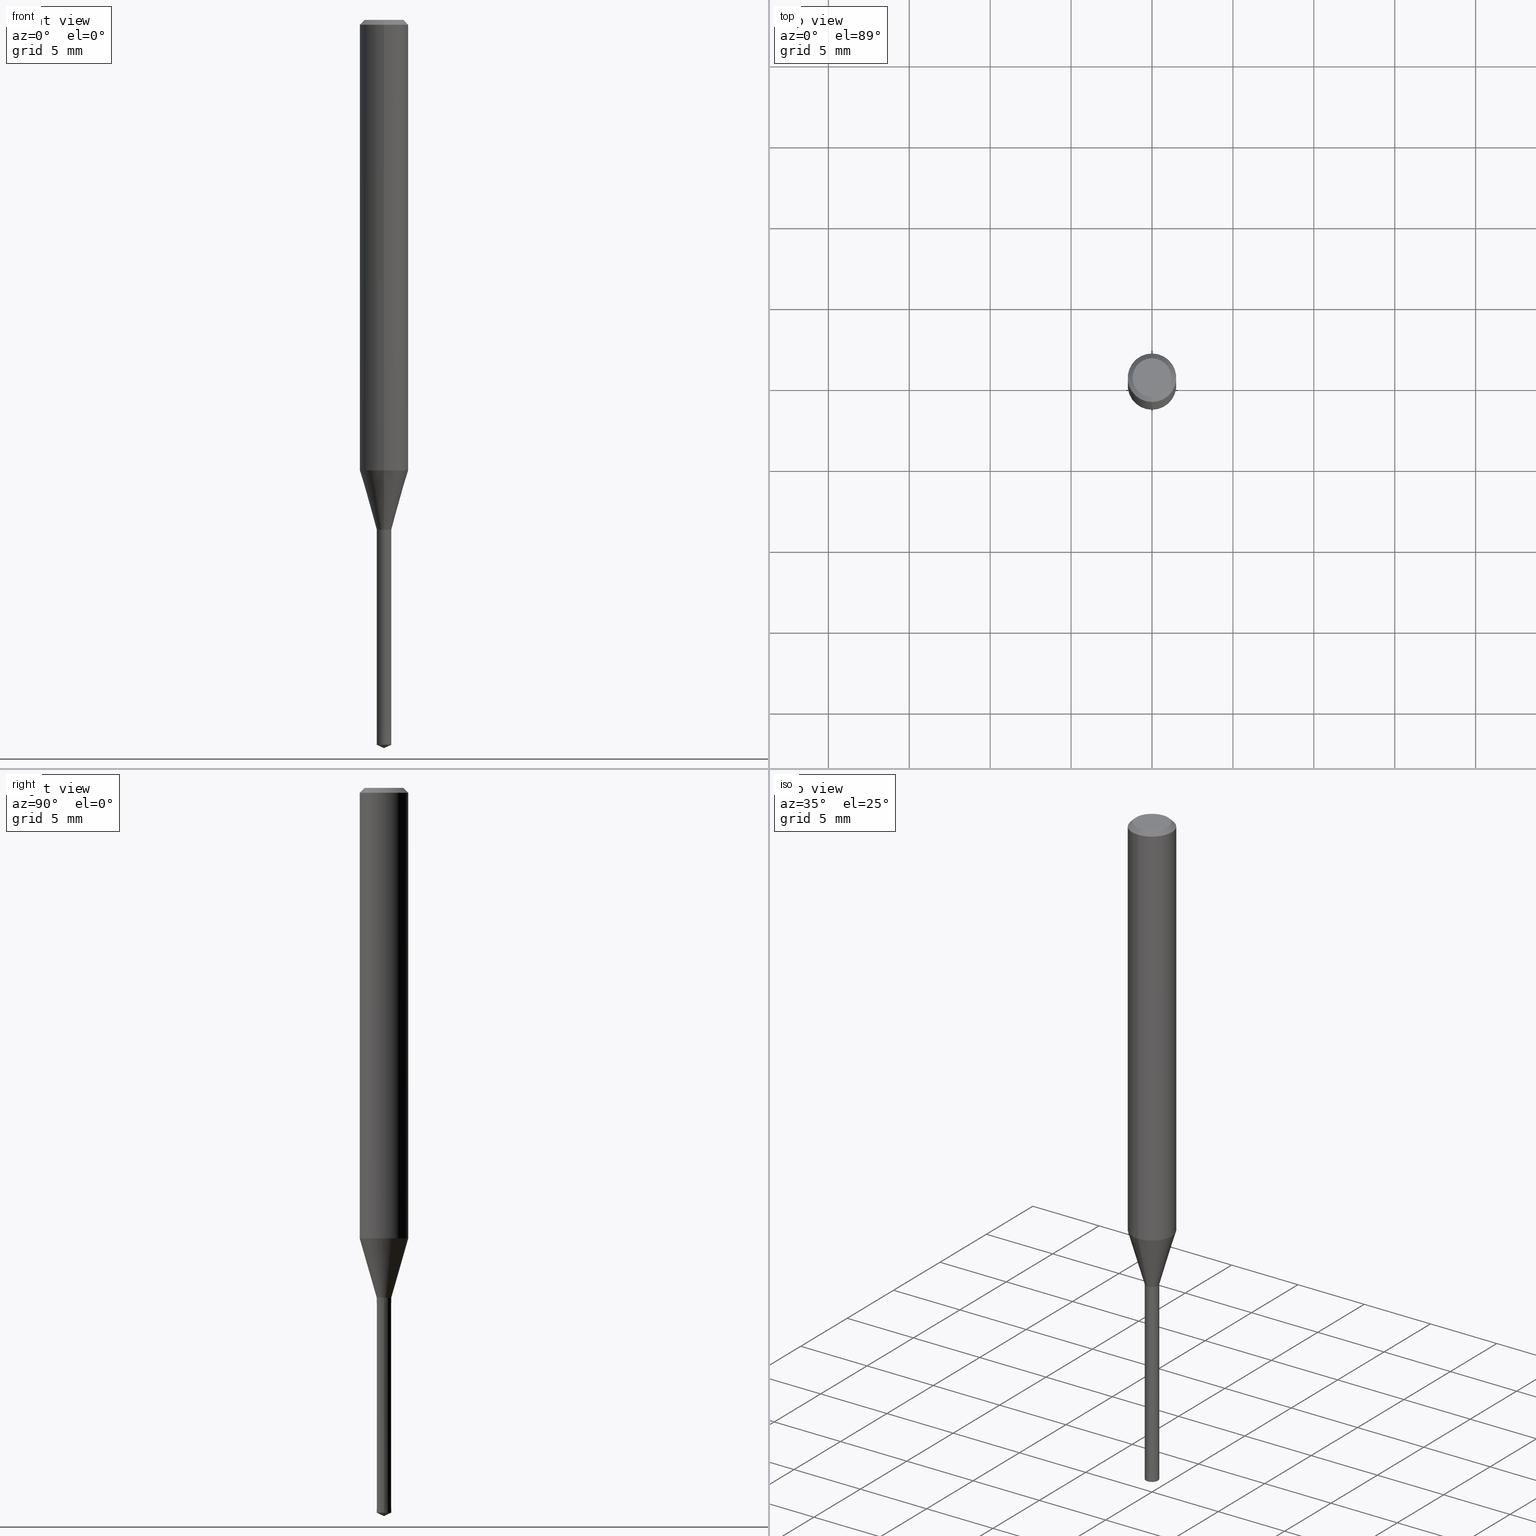
[diagram: canonical four-view strip — front | top / right | iso, engineering-drawing reading convention]
A machine part, canonical four-view strip (front | top / right | iso — engineering-drawing reading convention). The complete STEP part file that produces these views, byte-faithful:
ISO-10303-21;
HEADER;
FILE_DESCRIPTION(('no description'),'unknown implementation level');
FILE_NAME('UTDLX2090-135-Huellk.stp','  ',('CIMSOURCE GmbH'),('CADClick - KiM GmbH - www.kimweb.de'),'unknown preprocess','ACIS','unknown authorization');
FILE_SCHEMA(('automotive_design'));
ENDSEC;
DATA;
#1=MECHANICAL_DESIGN_GEOMETRIC_PRESENTATION_REPRESENTATION(' ',(#14,#15,#16,#17,#18,#19,#20,#21,#22,#23,#24,#25,#26,#27,#28,#29,#30,#31,#32,#33,#34,#35,#36,#37,#38,#39,#40,#41,#42,#43,#44,#45,#46,#47,#48,#49,#50,#51,#52,#53,#54,#55,#56,#57,#58,#59,#60,#61,#62,#63,#64,#65,#66,#67,#68,#69,#70,#71),#10);
#2=PRODUCT_DEFINITION_CONTEXT('',#72,'design');
#3=APPLICATION_PROTOCOL_DEFINITION('INTERNATIONAL STANDARD','automotive_design',1994,#72);
#4=PRODUCT_CATEGORY_RELATIONSHIP('NONE','NONE',#73,#74);
#5=SHAPE_DEFINITION_REPRESENTATION(#75,#76);
#6=PRODUCT_DEFINITION_CONTEXT('',#77,'design');
#7=APPLICATION_PROTOCOL_DEFINITION('INTERNATIONAL STANDARD','automotive_design',1994,#77);
#8=PRODUCT_CATEGORY_RELATIONSHIP('NONE','NONE',#78,#79);
#9=SHAPE_DEFINITION_REPRESENTATION(#80,#81);
#10= (GEOMETRIC_REPRESENTATION_CONTEXT(3)GLOBAL_UNCERTAINTY_ASSIGNED_CONTEXT((#84))GLOBAL_UNIT_ASSIGNED_CONTEXT((#86,#87,#88))REPRESENTATION_CONTEXT('NONE','WORKSPACE'));
#14=STYLED_ITEM('',(#90),#91);
#15=STYLED_ITEM('',(#92),#93);
#16=STYLED_ITEM('',(#94),#95);
#17=STYLED_ITEM('',(#96),#97);
#18=STYLED_ITEM('',(#98),#99);
#19=STYLED_ITEM('',(#100),#101);
#20=STYLED_ITEM('',(#102),#103);
#21=STYLED_ITEM('',(#104),#105);
#22=STYLED_ITEM('',(#106),#107);
#23=STYLED_ITEM('',(#108),#109);
#24=STYLED_ITEM('',(#110),#111);
#25=STYLED_ITEM('',(#112),#113);
#26=STYLED_ITEM('',(#114),#115);
#27=STYLED_ITEM('',(#116),#117);
#28=STYLED_ITEM('',(#118),#119);
#29=STYLED_ITEM('',(#120),#121);
#30=STYLED_ITEM('',(#122),#123);
#31=STYLED_ITEM('',(#124),#125);
#32=STYLED_ITEM('',(#126),#127);
#33=STYLED_ITEM('',(#128),#129);
#34=STYLED_ITEM('',(#130),#131);
#35=STYLED_ITEM('',(#132),#133);
#36=STYLED_ITEM('',(#134),#135);
#37=STYLED_ITEM('',(#136),#137);
#38=STYLED_ITEM('',(#138),#139);
#39=STYLED_ITEM('',(#140),#141);
#40=STYLED_ITEM('',(#142),#143);
#41=STYLED_ITEM('',(#144),#145);
#42=STYLED_ITEM('',(#146),#147);
#43=STYLED_ITEM('',(#148),#149);
#44=STYLED_ITEM('',(#150),#151);
#45=STYLED_ITEM('',(#152),#153);
#46=STYLED_ITEM('',(#154),#155);
#47=STYLED_ITEM('',(#156),#157);
#48=STYLED_ITEM('',(#158),#159);
#49=STYLED_ITEM('',(#160),#161);
#50=STYLED_ITEM('',(#162),#163);
#51=STYLED_ITEM('',(#164),#165);
#52=STYLED_ITEM('',(#166),#167);
#53=STYLED_ITEM('',(#168),#169);
#54=STYLED_ITEM('',(#170),#171);
#55=STYLED_ITEM('',(#172),#173);
#56=STYLED_ITEM('',(#174),#175);
#57=STYLED_ITEM('',(#176),#177);
#58=STYLED_ITEM('',(#178),#179);
#59=STYLED_ITEM('',(#180),#181);
#60=STYLED_ITEM('',(#182),#183);
#61=STYLED_ITEM('',(#184),#185);
#62=STYLED_ITEM('',(#186),#187);
#63=STYLED_ITEM('',(#188),#189);
#64=STYLED_ITEM('',(#190),#191);
#65=STYLED_ITEM('',(#192),#193);
#66=STYLED_ITEM('',(#194),#195);
#67=STYLED_ITEM('',(#196),#197);
#68=STYLED_ITEM('',(#198),#199);
#69=STYLED_ITEM('',(#200),#201);
#70=STYLED_ITEM('',(#202),#203);
#71=STYLED_ITEM('',(#204),#205);
#72=APPLICATION_CONTEXT(' ');
#73=PRODUCT_CATEGORY('part','NONE');
#74=PRODUCT_RELATED_PRODUCT_CATEGORY('detail',' ',(#206));
#75=PRODUCT_DEFINITION_SHAPE('NONE','NONE',#207);
#76=ADVANCED_BREP_SHAPE_REPRESENTATION('1',(#133,#208),#10);
#77=APPLICATION_CONTEXT(' ');
#78=PRODUCT_CATEGORY('part','NONE');
#79=PRODUCT_RELATED_PRODUCT_CATEGORY('detail',' ',(#209));
#80=PRODUCT_DEFINITION_SHAPE('NONE','NONE',#210);
#81=ADVANCED_BREP_SHAPE_REPRESENTATION('2',(#205,#211),#10);
#84=UNCERTAINTY_MEASURE_WITH_UNIT(LENGTH_MEASURE(1.0E-006),#86,'','');
#86= (CONVERSION_BASED_UNIT('MILLIMETRE',#214)LENGTH_UNIT()NAMED_UNIT(#217));
#87= (NAMED_UNIT(#219)PLANE_ANGLE_UNIT()SI_UNIT($,.RADIAN.));
#88= (NAMED_UNIT(#219)SOLID_ANGLE_UNIT()SI_UNIT($,.STERADIAN.));
#90=PRESENTATION_STYLE_ASSIGNMENT((#225));
#91=ADVANCED_FACE('',(#226),#227,.T.);
#92=PRESENTATION_STYLE_ASSIGNMENT((#228));
#93=EDGE_CURVE('',#109,#177,#229,.T.);
#94=PRESENTATION_STYLE_ASSIGNMENT((#230));
#95=EDGE_CURVE('',#103,#189,#231,.T.);
#96=PRESENTATION_STYLE_ASSIGNMENT((#232));
#97=EDGE_CURVE('',#113,#181,#233,.T.);
#98=PRESENTATION_STYLE_ASSIGNMENT((#234));
#99=ADVANCED_FACE('',(#235),#236,.T.);
#100=PRESENTATION_STYLE_ASSIGNMENT((#237));
#101=VERTEX_POINT('',#238);
#102=PRESENTATION_STYLE_ASSIGNMENT((#239));
#103=VERTEX_POINT('',#240);
#104=PRESENTATION_STYLE_ASSIGNMENT((#241));
#105=ADVANCED_FACE('',(#242),#243,.T.);
#106=PRESENTATION_STYLE_ASSIGNMENT((#244));
#107=ADVANCED_FACE('',(#245),#246,.T.);
#108=PRESENTATION_STYLE_ASSIGNMENT((#247));
#109=VERTEX_POINT('',#248);
#110=PRESENTATION_STYLE_ASSIGNMENT((#249));
#111=VERTEX_POINT('',#250);
#112=PRESENTATION_STYLE_ASSIGNMENT((#251));
#113=VERTEX_POINT('',#252);
#114=PRESENTATION_STYLE_ASSIGNMENT((#253));
#115=EDGE_CURVE('',#137,#113,#254,.T.);
#116=PRESENTATION_STYLE_ASSIGNMENT((#255));
#117=ADVANCED_FACE('',(#256),#257,.T.);
#118=PRESENTATION_STYLE_ASSIGNMENT((#258));
#119=ADVANCED_FACE('',(#259),#260,.T.);
#120=PRESENTATION_STYLE_ASSIGNMENT((#261));
#121=ADVANCED_FACE('',(#262),#263,.T.);
#122=PRESENTATION_STYLE_ASSIGNMENT((#264));
#123=EDGE_CURVE('',#203,#109,#265,.T.);
#124=PRESENTATION_STYLE_ASSIGNMENT((#266));
#125=EDGE_CURVE('',#161,#177,#267,.T.);
#126=PRESENTATION_STYLE_ASSIGNMENT((#268));
#127=EDGE_CURVE('',#111,#185,#269,.T.);
#128=PRESENTATION_STYLE_ASSIGNMENT((#270));
#129=ADVANCED_FACE('',(#271),#272,.T.);
#130=PRESENTATION_STYLE_ASSIGNMENT((#273));
#131=EDGE_CURVE('',#109,#203,#274,.T.);
#132=PRESENTATION_STYLE_ASSIGNMENT((#275));
#133=MANIFOLD_SOLID_BREP('1',#276);
#134=PRESENTATION_STYLE_ASSIGNMENT((#277));
#135=EDGE_CURVE('',#185,#111,#278,.T.);
#136=PRESENTATION_STYLE_ASSIGNMENT((#279));
#137=VERTEX_POINT('',#280);
#138=PRESENTATION_STYLE_ASSIGNMENT((#281));
#139=EDGE_CURVE('',#151,#173,#282,.T.);
#140=PRESENTATION_STYLE_ASSIGNMENT((#283));
#141=ADVANCED_FACE('',(#284),#285,.T.);
#142=PRESENTATION_STYLE_ASSIGNMENT((#286));
#143=ADVANCED_FACE('',(#287),#288,.T.);
#144=PRESENTATION_STYLE_ASSIGNMENT((#289));
#145=EDGE_CURVE('',#103,#185,#290,.T.);
#146=PRESENTATION_STYLE_ASSIGNMENT((#291));
#147=EDGE_CURVE('',#161,#203,#292,.T.);
#148=PRESENTATION_STYLE_ASSIGNMENT((#293));
#149=EDGE_CURVE('',#151,#113,#294,.T.);
#150=PRESENTATION_STYLE_ASSIGNMENT((#295));
#151=VERTEX_POINT('',#296);
#152=PRESENTATION_STYLE_ASSIGNMENT((#297));
#153=EDGE_CURVE('',#167,#101,#298,.T.);
#154=PRESENTATION_STYLE_ASSIGNMENT((#299));
#155=ADVANCED_FACE('',(#300),#301,.T.);
#156=PRESENTATION_STYLE_ASSIGNMENT((#302));
#157=EDGE_CURVE('',#113,#137,#303,.T.);
#158=PRESENTATION_STYLE_ASSIGNMENT((#304));
#159=EDGE_CURVE('',#167,#109,#305,.T.);
#160=PRESENTATION_STYLE_ASSIGNMENT((#306));
#161=VERTEX_POINT('',#307);
#162=PRESENTATION_STYLE_ASSIGNMENT((#308));
#163=EDGE_CURVE('',#101,#167,#309,.T.);
#164=PRESENTATION_STYLE_ASSIGNMENT((#310));
#165=EDGE_CURVE('',#203,#101,#311,.T.);
#166=PRESENTATION_STYLE_ASSIGNMENT((#312));
#167=VERTEX_POINT('',#313);
#168=PRESENTATION_STYLE_ASSIGNMENT((#314));
#169=ADVANCED_FACE('',(#315),#316,.T.);
#170=PRESENTATION_STYLE_ASSIGNMENT((#317));
#171=EDGE_CURVE('',#111,#189,#318,.T.);
#172=PRESENTATION_STYLE_ASSIGNMENT((#319));
#173=VERTEX_POINT('',#320);
#174=PRESENTATION_STYLE_ASSIGNMENT((#321));
#175=ADVANCED_FACE('',(#322),#323,.T.);
#176=PRESENTATION_STYLE_ASSIGNMENT((#324));
#177=VERTEX_POINT('',#325);
#178=PRESENTATION_STYLE_ASSIGNMENT((#326));
#179=EDGE_CURVE('',#173,#151,#327,.T.);
#180=PRESENTATION_STYLE_ASSIGNMENT((#328));
#181=VERTEX_POINT('',#329);
#182=PRESENTATION_STYLE_ASSIGNMENT((#330));
#183=EDGE_CURVE('',#189,#103,#331,.T.);
#184=PRESENTATION_STYLE_ASSIGNMENT((#332));
#185=VERTEX_POINT('',#333);
#186=PRESENTATION_STYLE_ASSIGNMENT((#334));
#187=EDGE_CURVE('',#177,#103,#335,.T.);
#188=PRESENTATION_STYLE_ASSIGNMENT((#336));
#189=VERTEX_POINT('',#337);
#190=PRESENTATION_STYLE_ASSIGNMENT((#338));
#191=ADVANCED_FACE('',(#339),#340,.T.);
#192=PRESENTATION_STYLE_ASSIGNMENT((#341));
#193=ADVANCED_FACE('',(#342),#343,.T.);
#194=PRESENTATION_STYLE_ASSIGNMENT((#344));
#195=EDGE_CURVE('',#177,#161,#345,.T.);
#196=PRESENTATION_STYLE_ASSIGNMENT((#346));
#197=EDGE_CURVE('',#189,#161,#347,.T.);
#198=PRESENTATION_STYLE_ASSIGNMENT((#348));
#199=EDGE_CURVE('',#137,#173,#349,.T.);
#200=PRESENTATION_STYLE_ASSIGNMENT((#350));
#201=EDGE_CURVE('',#181,#137,#351,.T.);
#202=PRESENTATION_STYLE_ASSIGNMENT((#352));
#203=VERTEX_POINT('',#353);
#204=PRESENTATION_STYLE_ASSIGNMENT((#354));
#205=MANIFOLD_SOLID_BREP('2',#355);
#206=PRODUCT('1','1','PART-1-DESC',(#356));
#207=PRODUCT_DEFINITION('NONE','NONE',#357,#2);
#208=AXIS2_PLACEMENT_3D('',#358,#359,#360);
#209=PRODUCT('2','2','PART-2-DESC',(#361));
#210=PRODUCT_DEFINITION('NONE','NONE',#362,#6);
#211=AXIS2_PLACEMENT_3D('',#363,#364,#365);
#214=LENGTH_MEASURE_WITH_UNIT(LENGTH_MEASURE(1.0),#366);
#217=DIMENSIONAL_EXPONENTS(1.0,0.0,0.0,0.0,0.0,0.0,0.0);
#219=DIMENSIONAL_EXPONENTS(0.0,0.0,0.0,0.0,0.0,0.0,0.0);
#225=SURFACE_STYLE_USAGE(.BOTH.,#367);
#226=FACE_OUTER_BOUND('',#368,.T.);
#227=CYLINDRICAL_SURFACE('',#369,1.5);
#228=CURVE_STYLE('',#370,POSITIVE_LENGTH_MEASURE(1.0E-006),#371);
#229=LINE('',#372,#373);
#230=CURVE_STYLE('',#374,POSITIVE_LENGTH_MEASURE(1.0E-006),#375);
#231=CIRCLE('',#376,0.45);
#232=CURVE_STYLE('',#377,POSITIVE_LENGTH_MEASURE(1.0E-006),#378);
#233=LINE('',#379,#380);
#234=SURFACE_STYLE_USAGE(.BOTH.,#381);
#235=FACE_OUTER_BOUND('',#382,.T.);
#236=CYLINDRICAL_SURFACE('',#383,1.5);
#237=POINT_STYLE(' ',#384,POSITIVE_LENGTH_MEASURE(1.0E-006),#385);
#238=CARTESIAN_POINT('',(1.46952762458685E-016,-1.2,0.0));
#239=POINT_STYLE(' ',#386,POSITIVE_LENGTH_MEASURE(1.0E-006),#387);
#240=CARTESIAN_POINT('',(0.0,0.45,-31.4991339745962));
#241=SURFACE_STYLE_USAGE(.BOTH.,#388);
#242=FACE_OUTER_BOUND('',#389,.T.);
#243=CONICAL_SURFACE('',#390,1.35,0.785398163397447);
#244=SURFACE_STYLE_USAGE(.BOTH.,#391);
#245=FACE_OUTER_BOUND('',#392,.T.);
#246=CONICAL_SURFACE('',#393,0.45025,0.523598775598408);
#247=POINT_STYLE(' ',#394,POSITIVE_LENGTH_MEASURE(1.0E-006),#395);
#248=CARTESIAN_POINT('',(0.0,1.5,-0.300000000000001));
#249=POINT_STYLE(' ',#396,POSITIVE_LENGTH_MEASURE(1.0E-006),#397);
#250=CARTESIAN_POINT('',(5.51685162396981E-017,-0.4505,-31.5));
#251=POINT_STYLE(' ',#398,POSITIVE_LENGTH_MEASURE(1.0E-006),#399);
#252=CARTESIAN_POINT('',(-0.45,0.0,-44.79016155));
#253=CURVE_STYLE('',#400,POSITIVE_LENGTH_MEASURE(1.0E-006),#401);
#254=CIRCLE('',#402,0.45);
#255=SURFACE_STYLE_USAGE(.BOTH.,#403);
#256=FACE_OUTER_BOUND('',#404,.T.);
#257=CONICAL_SURFACE('',#405,1.35,0.785398163397447);
#258=SURFACE_STYLE_USAGE(.BOTH.,#406);
#259=FACE_OUTER_BOUND('',#407,.T.);
#260=PLANE('',#408);
#261=SURFACE_STYLE_USAGE(.BOTH.,#409);
#262=FACE_OUTER_BOUND('',#410,.T.);
#263=CONICAL_SURFACE('',#411,0.975,0.27929980700525);
#264=CURVE_STYLE('',#412,POSITIVE_LENGTH_MEASURE(1.0E-006),#413);
#265=CIRCLE('',#414,1.5);
#266=CURVE_STYLE('',#415,POSITIVE_LENGTH_MEASURE(1.0E-006),#416);
#267=CIRCLE('',#417,1.5);
#268=CURVE_STYLE('',#418,POSITIVE_LENGTH_MEASURE(1.0E-006),#419);
#269=CIRCLE('',#420,0.4505);
#270=SURFACE_STYLE_USAGE(.BOTH.,#421);
#271=FACE_OUTER_BOUND('',#422,.T.);
#272=PLANE('',#423);
#273=CURVE_STYLE('',#424,POSITIVE_LENGTH_MEASURE(1.0E-006),#425);
#274=CIRCLE('',#426,1.5);
#275=SURFACE_STYLE_USAGE(.BOTH.,#427);
#276=CLOSED_SHELL('',(#107,#191,#91,#105,#141,#117,#99,#121,#143,#119));
#277=CURVE_STYLE('',#428,POSITIVE_LENGTH_MEASURE(1.0E-006),#429);
#278=CIRCLE('',#430,0.4505);
#279=POINT_STYLE(' ',#431,POSITIVE_LENGTH_MEASURE(1.0E-006),#432);
#280=CARTESIAN_POINT('',(0.45,5.5107285922007E-017,-44.79016155));
#281=CURVE_STYLE('',#433,POSITIVE_LENGTH_MEASURE(1.0E-006),#434);
#282=CIRCLE('',#435,0.451);
#283=SURFACE_STYLE_USAGE(.BOTH.,#436);
#284=FACE_OUTER_BOUND('',#437,.T.);
#285=PLANE('',#438);
#286=SURFACE_STYLE_USAGE(.BOTH.,#439);
#287=FACE_OUTER_BOUND('',#440,.T.);
#288=CONICAL_SURFACE('',#441,0.45025,0.523598775598408);
#289=CURVE_STYLE('',#442,POSITIVE_LENGTH_MEASURE(1.0E-006),#443);
#290=LINE('',#444,#445);
#291=CURVE_STYLE('',#446,POSITIVE_LENGTH_MEASURE(1.0E-006),#447);
#292=LINE('',#448,#449);
#293=CURVE_STYLE('',#450,POSITIVE_LENGTH_MEASURE(1.0E-006),#451);
#294=LINE('',#452,#453);
#295=POINT_STYLE(' ',#454,POSITIVE_LENGTH_MEASURE(1.0E-006),#455);
#296=CARTESIAN_POINT('',(-0.451,0.0,-31.5));
#297=CURVE_STYLE('',#456,POSITIVE_LENGTH_MEASURE(1.0E-006),#457);
#298=CIRCLE('',#458,1.2);
#299=SURFACE_STYLE_USAGE(.BOTH.,#459);
#300=FACE_OUTER_BOUND('',#460,.T.);
#301=CONICAL_SURFACE('',#461,0.225,1.13446400680488);
#302=CURVE_STYLE('',#462,POSITIVE_LENGTH_MEASURE(1.0E-006),#463);
#303=CIRCLE('',#464,0.45);
#304=CURVE_STYLE('',#465,POSITIVE_LENGTH_MEASURE(1.0E-006),#466);
#305=LINE('',#467,#468);
#306=POINT_STYLE(' ',#469,POSITIVE_LENGTH_MEASURE(1.0E-006),#470);
#307=CARTESIAN_POINT('',(1.83690953073357E-016,-1.5,-27.838));
#308=CURVE_STYLE('',#471,POSITIVE_LENGTH_MEASURE(1.0E-006),#472);
#309=CIRCLE('',#473,1.2);
#310=CURVE_STYLE('',#474,POSITIVE_LENGTH_MEASURE(1.0E-006),#475);
#311=LINE('',#476,#477);
#312=POINT_STYLE(' ',#478,POSITIVE_LENGTH_MEASURE(1.0E-006),#479);
#313=CARTESIAN_POINT('',(0.0,1.2,0.0));
#314=SURFACE_STYLE_USAGE(.BOTH.,#480);
#315=FACE_OUTER_BOUND('',#481,.T.);
#316=CONICAL_SURFACE('',#482,0.4505,7.52436299852803E-005);
#317=CURVE_STYLE('',#483,POSITIVE_LENGTH_MEASURE(1.0E-006),#484);
#318=LINE('',#485,#486);
#319=POINT_STYLE(' ',#487,POSITIVE_LENGTH_MEASURE(1.0E-006),#488);
#320=CARTESIAN_POINT('',(0.451,5.52297465573892E-017,-31.5));
#321=SURFACE_STYLE_USAGE(.BOTH.,#489);
#322=FACE_OUTER_BOUND('',#490,.T.);
#323=CONICAL_SURFACE('',#491,0.225,1.13446400680488);
#324=POINT_STYLE(' ',#492,POSITIVE_LENGTH_MEASURE(1.0E-006),#493);
#325=CARTESIAN_POINT('',(0.0,1.5,-27.838));
#326=CURVE_STYLE('',#494,POSITIVE_LENGTH_MEASURE(1.0E-006),#495);
#327=CIRCLE('',#496,0.451);
#328=POINT_STYLE(' ',#497,POSITIVE_LENGTH_MEASURE(1.0E-006),#498);
#329=CARTESIAN_POINT('',(0.0,0.0,-45.0));
#330=CURVE_STYLE('',#499,POSITIVE_LENGTH_MEASURE(1.0E-006),#500);
#331=CIRCLE('',#501,0.45);
#332=POINT_STYLE(' ',#502,POSITIVE_LENGTH_MEASURE(1.0E-006),#503);
#333=CARTESIAN_POINT('',(0.0,0.4505,-31.5));
#334=CURVE_STYLE('',#504,POSITIVE_LENGTH_MEASURE(1.0E-006),#505);
#335=LINE('',#506,#507);
#336=POINT_STYLE(' ',#508,POSITIVE_LENGTH_MEASURE(1.0E-006),#509);
#337=CARTESIAN_POINT('',(5.5107285922007E-017,-0.45,-31.4991339745962));
#338=SURFACE_STYLE_USAGE(.BOTH.,#510);
#339=FACE_OUTER_BOUND('',#511,.T.);
#340=CONICAL_SURFACE('',#512,0.975,0.27929980700525);
#341=SURFACE_STYLE_USAGE(.BOTH.,#513);
#342=FACE_OUTER_BOUND('',#514,.T.);
#343=CONICAL_SURFACE('',#515,0.4505,7.52436299852803E-005);
#344=CURVE_STYLE('',#516,POSITIVE_LENGTH_MEASURE(1.0E-006),#517);
#345=CIRCLE('',#518,1.5);
#346=CURVE_STYLE('',#519,POSITIVE_LENGTH_MEASURE(1.0E-006),#520);
#347=LINE('',#521,#522);
#348=CURVE_STYLE('',#523,POSITIVE_LENGTH_MEASURE(1.0E-006),#524);
#349=LINE('',#525,#526);
#350=CURVE_STYLE('',#527,POSITIVE_LENGTH_MEASURE(1.0E-006),#528);
#351=LINE('',#529,#530);
#352=POINT_STYLE(' ',#531,POSITIVE_LENGTH_MEASURE(1.0E-006),#532);
#353=CARTESIAN_POINT('',(1.83690953073357E-016,-1.5,-0.300000000000001));
#354=SURFACE_STYLE_USAGE(.BOTH.,#533);
#355=CLOSED_SHELL('',(#155,#169,#129,#193,#175));
#356=PRODUCT_CONTEXT('',#72,'mechanical');
#357=PRODUCT_DEFINITION_FORMATION_WITH_SPECIFIED_SOURCE(' ','NONE',#206,.NOT_KNOWN.);
#358=CARTESIAN_POINT('',(0.0,0.0,0.0));
#359=DIRECTION('',(0.0,0.0,1.0));
#360=DIRECTION('',(1.0,0.0,0.0));
#361=PRODUCT_CONTEXT('',#77,'mechanical');
#362=PRODUCT_DEFINITION_FORMATION_WITH_SPECIFIED_SOURCE(' ','NONE',#209,.NOT_KNOWN.);
#363=CARTESIAN_POINT('',(0.0,0.0,0.0));
#364=DIRECTION('',(0.0,0.0,1.0));
#365=DIRECTION('',(1.0,0.0,0.0));
#366= (NAMED_UNIT(#217)LENGTH_UNIT()SI_UNIT(.MILLI.,.METRE.));
#367=SURFACE_SIDE_STYLE('',(#535));
#368=EDGE_LOOP('',(#536,#537,#538,#539));
#369=AXIS2_PLACEMENT_3D('',#540,#541,#542);
#370=DRAUGHTING_PRE_DEFINED_CURVE_FONT('continuous');
#371=COLOUR_RGB('',0.498039215803146,0.498039215803146,0.498039215803146);
#372=CARTESIAN_POINT('',(-1.83690953073357E-016,1.5,-14.069));
#373=VECTOR('',#543,1.0);
#374=DRAUGHTING_PRE_DEFINED_CURVE_FONT('continuous');
#375=COLOUR_RGB('',0.498039215803146,0.498039215803146,0.498039215803146);
#376=AXIS2_PLACEMENT_3D('',#544,#545,#546);
#377=DRAUGHTING_PRE_DEFINED_CURVE_FONT('continuous');
#378=COLOUR_RGB('',0.800000011920929,0.800000011920929,0.800000011920929);
#379=CARTESIAN_POINT('',(-0.225,-2.75536429610035E-017,-44.895080775));
#380=VECTOR('',#547,1.0);
#381=SURFACE_SIDE_STYLE('',(#548));
#382=EDGE_LOOP('',(#549,#550,#551,#552));
#383=AXIS2_PLACEMENT_3D('',#553,#554,#555);
#384=PRE_DEFINED_MARKER('');
#385=COLOUR_RGB('',0.498039215803146,0.498039215803146,0.498039215803146);
#386=PRE_DEFINED_MARKER('');
#387=COLOUR_RGB('',0.498039215803146,0.498039215803146,0.498039215803146);
#388=SURFACE_SIDE_STYLE('',(#556));
#389=EDGE_LOOP('',(#557,#558,#559,#560));
#390=AXIS2_PLACEMENT_3D('',#561,#562,#563);
#391=SURFACE_SIDE_STYLE('',(#564));
#392=EDGE_LOOP('',(#565,#566,#567,#568));
#393=AXIS2_PLACEMENT_3D('',#569,#570,#571);
#394=PRE_DEFINED_MARKER('');
#395=COLOUR_RGB('',0.498039215803146,0.498039215803146,0.498039215803146);
#396=PRE_DEFINED_MARKER('');
#397=COLOUR_RGB('',0.498039215803146,0.498039215803146,0.498039215803146);
#398=PRE_DEFINED_MARKER('');
#399=COLOUR_RGB('',0.800000011920929,0.800000011920929,0.800000011920929);
#400=DRAUGHTING_PRE_DEFINED_CURVE_FONT('continuous');
#401=COLOUR_RGB('',0.800000011920929,0.800000011920929,0.800000011920929);
#402=AXIS2_PLACEMENT_3D('',#572,#573,#574);
#403=SURFACE_SIDE_STYLE('',(#575));
#404=EDGE_LOOP('',(#576,#577,#578,#579));
#405=AXIS2_PLACEMENT_3D('',#580,#581,#582);
#406=SURFACE_SIDE_STYLE('',(#583));
#407=EDGE_LOOP('',(#584,#585));
#408=AXIS2_PLACEMENT_3D('',#586,#587,#588);
#409=SURFACE_SIDE_STYLE('',(#589));
#410=EDGE_LOOP('',(#590,#591,#592,#593));
#411=AXIS2_PLACEMENT_3D('',#594,#595,#596);
#412=DRAUGHTING_PRE_DEFINED_CURVE_FONT('continuous');
#413=COLOUR_RGB('',0.498039215803146,0.498039215803146,0.498039215803146);
#414=AXIS2_PLACEMENT_3D('',#597,#598,#599);
#415=DRAUGHTING_PRE_DEFINED_CURVE_FONT('continuous');
#416=COLOUR_RGB('',0.498039215803146,0.498039215803146,0.498039215803146);
#417=AXIS2_PLACEMENT_3D('',#600,#601,#602);
#418=DRAUGHTING_PRE_DEFINED_CURVE_FONT('continuous');
#419=COLOUR_RGB('',0.498039215803146,0.498039215803146,0.498039215803146);
#420=AXIS2_PLACEMENT_3D('',#603,#604,#605);
#421=SURFACE_SIDE_STYLE('',(#606));
#422=EDGE_LOOP('',(#607,#608));
#423=AXIS2_PLACEMENT_3D('',#609,#610,#611);
#424=DRAUGHTING_PRE_DEFINED_CURVE_FONT('continuous');
#425=COLOUR_RGB('',0.498039215803146,0.498039215803146,0.498039215803146);
#426=AXIS2_PLACEMENT_3D('',#612,#613,#614);
#427=SURFACE_SIDE_STYLE('',(#615));
#428=DRAUGHTING_PRE_DEFINED_CURVE_FONT('continuous');
#429=COLOUR_RGB('',0.498039215803146,0.498039215803146,0.498039215803146);
#430=AXIS2_PLACEMENT_3D('',#616,#617,#618);
#431=PRE_DEFINED_MARKER('');
#432=COLOUR_RGB('',0.800000011920929,0.800000011920929,0.800000011920929);
#433=DRAUGHTING_PRE_DEFINED_CURVE_FONT('continuous');
#434=COLOUR_RGB('',0.800000011920929,0.800000011920929,0.800000011920929);
#435=AXIS2_PLACEMENT_3D('',#619,#620,#621);
#436=SURFACE_SIDE_STYLE('',(#622));
#437=EDGE_LOOP('',(#623,#624));
#438=AXIS2_PLACEMENT_3D('',#625,#626,#627);
#439=SURFACE_SIDE_STYLE('',(#628));
#440=EDGE_LOOP('',(#629,#630,#631,#632));
#441=AXIS2_PLACEMENT_3D('',#633,#634,#635);
#442=DRAUGHTING_PRE_DEFINED_CURVE_FONT('continuous');
#443=COLOUR_RGB('',0.498039215803146,0.498039215803146,0.498039215803146);
#444=CARTESIAN_POINT('',(-5.51379010808525E-017,0.45025,-31.4995669872981));
#445=VECTOR('',#636,1.0);
#446=DRAUGHTING_PRE_DEFINED_CURVE_FONT('continuous');
#447=COLOUR_RGB('',0.498039215803146,0.498039215803146,0.498039215803146);
#448=CARTESIAN_POINT('',(1.83690953073357E-016,-1.5,-14.069));
#449=VECTOR('',#637,1.0);
#450=DRAUGHTING_PRE_DEFINED_CURVE_FONT('continuous');
#451=COLOUR_RGB('',0.800000011920929,0.800000011920929,0.800000011920929);
#452=CARTESIAN_POINT('',(-0.4505,-5.51685162396981E-017,-38.145080775));
#453=VECTOR('',#638,1.0);
#454=PRE_DEFINED_MARKER('');
#455=COLOUR_RGB('',0.800000011920929,0.800000011920929,0.800000011920929);
#456=DRAUGHTING_PRE_DEFINED_CURVE_FONT('continuous');
#457=COLOUR_RGB('',0.498039215803146,0.498039215803146,0.498039215803146);
#458=AXIS2_PLACEMENT_3D('',#639,#640,#641);
#459=SURFACE_SIDE_STYLE('',(#642));
#460=EDGE_LOOP('',(#643,#644,#645));
#461=AXIS2_PLACEMENT_3D('',#646,#647,#648);
#462=DRAUGHTING_PRE_DEFINED_CURVE_FONT('continuous');
#463=COLOUR_RGB('',0.800000011920929,0.800000011920929,0.800000011920929);
#464=AXIS2_PLACEMENT_3D('',#649,#650,#651);
#465=DRAUGHTING_PRE_DEFINED_CURVE_FONT('continuous');
#466=COLOUR_RGB('',0.498039215803146,0.498039215803146,0.498039215803146);
#467=CARTESIAN_POINT('',(-1.65321857766021E-016,1.35,-0.150000000000002));
#468=VECTOR('',#652,1.0);
#469=PRE_DEFINED_MARKER('');
#470=COLOUR_RGB('',0.498039215803146,0.498039215803146,0.498039215803146);
#471=DRAUGHTING_PRE_DEFINED_CURVE_FONT('continuous');
#472=COLOUR_RGB('',0.498039215803146,0.498039215803146,0.498039215803146);
#473=AXIS2_PLACEMENT_3D('',#653,#654,#655);
#474=DRAUGHTING_PRE_DEFINED_CURVE_FONT('continuous');
#475=COLOUR_RGB('',0.498039215803146,0.498039215803146,0.498039215803146);
#476=CARTESIAN_POINT('',(1.65321857766021E-016,-1.35,-0.150000000000002));
#477=VECTOR('',#656,1.0);
#478=PRE_DEFINED_MARKER('');
#479=COLOUR_RGB('',0.498039215803146,0.498039215803146,0.498039215803146);
#480=SURFACE_SIDE_STYLE('',(#657));
#481=EDGE_LOOP('',(#658,#659,#660,#661));
#482=AXIS2_PLACEMENT_3D('',#662,#663,#664);
#483=DRAUGHTING_PRE_DEFINED_CURVE_FONT('continuous');
#484=COLOUR_RGB('',0.498039215803146,0.498039215803146,0.498039215803146);
#485=CARTESIAN_POINT('',(5.51379010808525E-017,-0.45025,-31.4995669872981));
#486=VECTOR('',#665,1.0);
#487=PRE_DEFINED_MARKER('');
#488=COLOUR_RGB('',0.800000011920929,0.800000011920929,0.800000011920929);
#489=SURFACE_SIDE_STYLE('',(#666));
#490=EDGE_LOOP('',(#667,#668,#669));
#491=AXIS2_PLACEMENT_3D('',#670,#671,#672);
#492=PRE_DEFINED_MARKER('');
#493=COLOUR_RGB('',0.498039215803146,0.498039215803146,0.498039215803146);
#494=DRAUGHTING_PRE_DEFINED_CURVE_FONT('continuous');
#495=COLOUR_RGB('',0.800000011920929,0.800000011920929,0.800000011920929);
#496=AXIS2_PLACEMENT_3D('',#673,#674,#675);
#497=PRE_DEFINED_MARKER('');
#498=COLOUR_RGB('',0.800000011920929,0.800000011920929,0.800000011920929);
#499=DRAUGHTING_PRE_DEFINED_CURVE_FONT('continuous');
#500=COLOUR_RGB('',0.498039215803146,0.498039215803146,0.498039215803146);
#501=AXIS2_PLACEMENT_3D('',#676,#677,#678);
#502=PRE_DEFINED_MARKER('');
#503=COLOUR_RGB('',0.498039215803146,0.498039215803146,0.498039215803146);
#504=DRAUGHTING_PRE_DEFINED_CURVE_FONT('continuous');
#505=COLOUR_RGB('',0.498039215803146,0.498039215803146,0.498039215803146);
#506=CARTESIAN_POINT('',(-1.19399119497682E-016,0.975,-29.6685669872981));
#507=VECTOR('',#679,1.0);
#508=PRE_DEFINED_MARKER('');
#509=COLOUR_RGB('',0.498039215803146,0.498039215803146,0.498039215803146);
#510=SURFACE_SIDE_STYLE('',(#680));
#511=EDGE_LOOP('',(#681,#682,#683,#684));
#512=AXIS2_PLACEMENT_3D('',#685,#686,#687);
#513=SURFACE_SIDE_STYLE('',(#688));
#514=EDGE_LOOP('',(#689,#690,#691,#692));
#515=AXIS2_PLACEMENT_3D('',#693,#694,#695);
#516=DRAUGHTING_PRE_DEFINED_CURVE_FONT('continuous');
#517=COLOUR_RGB('',0.498039215803146,0.498039215803146,0.498039215803146);
#518=AXIS2_PLACEMENT_3D('',#696,#697,#698);
#519=DRAUGHTING_PRE_DEFINED_CURVE_FONT('continuous');
#520=COLOUR_RGB('',0.498039215803146,0.498039215803146,0.498039215803146);
#521=CARTESIAN_POINT('',(1.19399119497682E-016,-0.975,-29.6685669872981));
#522=VECTOR('',#699,1.0);
#523=DRAUGHTING_PRE_DEFINED_CURVE_FONT('continuous');
#524=COLOUR_RGB('',0.800000011920929,0.800000011920929,0.800000011920929);
#525=CARTESIAN_POINT('',(0.4505,5.51685162396981E-017,-38.145080775));
#526=VECTOR('',#700,1.0);
#527=DRAUGHTING_PRE_DEFINED_CURVE_FONT('continuous');
#528=COLOUR_RGB('',0.800000011920929,0.800000011920929,0.800000011920929);
#529=CARTESIAN_POINT('',(0.225,2.75536429610035E-017,-44.895080775));
#530=VECTOR('',#701,1.0);
#531=PRE_DEFINED_MARKER('');
#532=COLOUR_RGB('',0.498039215803146,0.498039215803146,0.498039215803146);
#533=SURFACE_SIDE_STYLE('',(#702));
#535=SURFACE_STYLE_FILL_AREA(#703);
#536=ORIENTED_EDGE('',*,*,#93,.F.);
#537=ORIENTED_EDGE('',*,*,#131,.T.);
#538=ORIENTED_EDGE('',*,*,#147,.F.);
#539=ORIENTED_EDGE('',*,*,#195,.F.);
#540=CARTESIAN_POINT('',(0.0,0.0,-14.069));
#541=DIRECTION('',(-0.0,-0.0,1.0));
#542=DIRECTION('',(0.0,1.0,0.0));
#543=DIRECTION('',(0.0,0.0,-1.0));
#544=CARTESIAN_POINT('',(0.0,0.0,-31.4991339745962));
#545=DIRECTION('',(0.0,0.0,-1.0));
#546=DIRECTION('',(0.0,1.0,0.0));
#547=DIRECTION('',(0.906307784081944,1.10987027090543E-016,-0.422618268077087));
#548=SURFACE_STYLE_FILL_AREA(#704);
#549=ORIENTED_EDGE('',*,*,#93,.T.);
#550=ORIENTED_EDGE('',*,*,#125,.F.);
#551=ORIENTED_EDGE('',*,*,#147,.T.);
#552=ORIENTED_EDGE('',*,*,#123,.T.);
#553=CARTESIAN_POINT('',(0.0,0.0,-14.069));
#554=DIRECTION('',(-0.0,-0.0,1.0));
#555=DIRECTION('',(0.0,1.0,0.0));
#556=SURFACE_STYLE_FILL_AREA(#705);
#557=ORIENTED_EDGE('',*,*,#159,.F.);
#558=ORIENTED_EDGE('',*,*,#153,.T.);
#559=ORIENTED_EDGE('',*,*,#165,.F.);
#560=ORIENTED_EDGE('',*,*,#131,.F.);
#561=CARTESIAN_POINT('',(0.0,0.0,-0.150000000000002));
#562=DIRECTION('',(0.0,-0.0,-1.0));
#563=DIRECTION('',(0.0,1.0,0.0));
#564=SURFACE_STYLE_FILL_AREA(#706);
#565=ORIENTED_EDGE('',*,*,#145,.F.);
#566=ORIENTED_EDGE('',*,*,#95,.T.);
#567=ORIENTED_EDGE('',*,*,#171,.F.);
#568=ORIENTED_EDGE('',*,*,#135,.F.);
#569=CARTESIAN_POINT('',(0.0,0.0,-31.4995669872981));
#570=DIRECTION('',(0.0,-0.0,-1.0));
#571=DIRECTION('',(0.0,1.0,0.0));
#572=CARTESIAN_POINT('',(0.0,0.0,-44.79016155));
#573=DIRECTION('',(0.0,0.0,-1.0));
#574=DIRECTION('',(-1.0,0.0,0.0));
#575=SURFACE_STYLE_FILL_AREA(#707);
#576=ORIENTED_EDGE('',*,*,#159,.T.);
#577=ORIENTED_EDGE('',*,*,#123,.F.);
#578=ORIENTED_EDGE('',*,*,#165,.T.);
#579=ORIENTED_EDGE('',*,*,#163,.T.);
#580=CARTESIAN_POINT('',(0.0,0.0,-0.150000000000002));
#581=DIRECTION('',(0.0,-0.0,-1.0));
#582=DIRECTION('',(0.0,1.0,0.0));
#583=SURFACE_STYLE_FILL_AREA(#708);
#584=ORIENTED_EDGE('',*,*,#135,.T.);
#585=ORIENTED_EDGE('',*,*,#127,.T.);
#586=CARTESIAN_POINT('',(0.0,0.22525,-31.5));
#587=DIRECTION('',(0.0,0.0,-1.0));
#588=DIRECTION('',(0.0,1.0,0.0));
#589=SURFACE_STYLE_FILL_AREA(#709);
#590=ORIENTED_EDGE('',*,*,#187,.T.);
#591=ORIENTED_EDGE('',*,*,#183,.F.);
#592=ORIENTED_EDGE('',*,*,#197,.T.);
#593=ORIENTED_EDGE('',*,*,#125,.T.);
#594=CARTESIAN_POINT('',(0.0,0.0,-29.6685669872981));
#595=DIRECTION('',(-0.0,-0.0,1.0));
#596=DIRECTION('',(0.0,1.0,0.0));
#597=CARTESIAN_POINT('',(0.0,0.0,-0.300000000000001));
#598=DIRECTION('',(0.0,0.0,-1.0));
#599=DIRECTION('',(0.0,1.0,0.0));
#600=CARTESIAN_POINT('',(0.0,0.0,-27.838));
#601=DIRECTION('',(0.0,0.0,-1.0));
#602=DIRECTION('',(0.0,1.0,0.0));
#603=CARTESIAN_POINT('',(0.0,0.0,-31.5));
#604=DIRECTION('',(0.0,0.0,-1.0));
#605=DIRECTION('',(0.0,1.0,0.0));
#606=SURFACE_STYLE_FILL_AREA(#710);
#607=ORIENTED_EDGE('',*,*,#139,.F.);
#608=ORIENTED_EDGE('',*,*,#179,.F.);
#609=CARTESIAN_POINT('',(-0.2255,0.0,-31.5));
#610=DIRECTION('',(0.0,0.0,1.0));
#611=DIRECTION('',(1.0,0.0,0.0));
#612=CARTESIAN_POINT('',(0.0,0.0,-0.300000000000001));
#613=DIRECTION('',(0.0,0.0,-1.0));
#614=DIRECTION('',(0.0,1.0,0.0));
#615=SURFACE_STYLE_FILL_AREA(#711);
#616=CARTESIAN_POINT('',(0.0,0.0,-31.5));
#617=DIRECTION('',(0.0,0.0,-1.0));
#618=DIRECTION('',(0.0,1.0,0.0));
#619=CARTESIAN_POINT('',(0.0,0.0,-31.5));
#620=DIRECTION('',(0.0,0.0,-1.0));
#621=DIRECTION('',(-1.0,0.0,0.0));
#622=SURFACE_STYLE_FILL_AREA(#712);
#623=ORIENTED_EDGE('',*,*,#153,.F.);
#624=ORIENTED_EDGE('',*,*,#163,.F.);
#625=CARTESIAN_POINT('',(0.0,0.6,0.0));
#626=DIRECTION('',(-0.0,0.0,1.0));
#627=DIRECTION('',(0.0,-1.0,0.0));
#628=SURFACE_STYLE_FILL_AREA(#713);
#629=ORIENTED_EDGE('',*,*,#145,.T.);
#630=ORIENTED_EDGE('',*,*,#127,.F.);
#631=ORIENTED_EDGE('',*,*,#171,.T.);
#632=ORIENTED_EDGE('',*,*,#183,.T.);
#633=CARTESIAN_POINT('',(0.0,0.0,-31.4995669872981));
#634=DIRECTION('',(0.0,-0.0,-1.0));
#635=DIRECTION('',(0.0,1.0,0.0));
#636=DIRECTION('',(-6.12303176911305E-017,0.500000000000095,-0.866025403784384));
#637=DIRECTION('',(-0.0,-0.0,1.0));
#638=DIRECTION('',(7.52436299142804E-005,9.21438272776873E-021,-0.999999997169198));
#639=CARTESIAN_POINT('',(0.0,0.0,0.0));
#640=DIRECTION('',(0.0,0.0,-1.0));
#641=DIRECTION('',(0.0,1.0,0.0));
#642=SURFACE_STYLE_FILL_AREA(#714);
#643=ORIENTED_EDGE('',*,*,#201,.F.);
#644=ORIENTED_EDGE('',*,*,#97,.F.);
#645=ORIENTED_EDGE('',*,*,#157,.T.);
#646=CARTESIAN_POINT('',(0.0,0.0,-44.895080775));
#647=DIRECTION('',(-0.0,-0.0,1.0));
#648=DIRECTION('',(-1.0,0.0,0.0));
#649=CARTESIAN_POINT('',(0.0,0.0,-44.79016155));
#650=DIRECTION('',(0.0,0.0,-1.0));
#651=DIRECTION('',(-1.0,0.0,0.0));
#652=DIRECTION('',(-8.65927457071934E-017,0.707106781186546,-0.707106781186549));
#653=CARTESIAN_POINT('',(0.0,0.0,0.0));
#654=DIRECTION('',(0.0,0.0,-1.0));
#655=DIRECTION('',(0.0,1.0,0.0));
#656=DIRECTION('',(-8.65927457071934E-017,0.707106781186546,0.707106781186549));
#657=SURFACE_STYLE_FILL_AREA(#715);
#658=ORIENTED_EDGE('',*,*,#149,.F.);
#659=ORIENTED_EDGE('',*,*,#139,.T.);
#660=ORIENTED_EDGE('',*,*,#199,.F.);
#661=ORIENTED_EDGE('',*,*,#157,.F.);
#662=CARTESIAN_POINT('',(0.0,0.0,-38.145080775));
#663=DIRECTION('',(-0.0,-0.0,1.0));
#664=DIRECTION('',(-1.0,0.0,0.0));
#665=DIRECTION('',(-6.12303176911305E-017,0.500000000000095,0.866025403784384));
#666=SURFACE_STYLE_FILL_AREA(#716);
#667=ORIENTED_EDGE('',*,*,#201,.T.);
#668=ORIENTED_EDGE('',*,*,#115,.T.);
#669=ORIENTED_EDGE('',*,*,#97,.T.);
#670=CARTESIAN_POINT('',(0.0,0.0,-44.895080775));
#671=DIRECTION('',(-0.0,-0.0,1.0));
#672=DIRECTION('',(-1.0,0.0,0.0));
#673=CARTESIAN_POINT('',(0.0,0.0,-31.5));
#674=DIRECTION('',(0.0,0.0,-1.0));
#675=DIRECTION('',(-1.0,0.0,0.0));
#676=CARTESIAN_POINT('',(0.0,0.0,-31.4991339745962));
#677=DIRECTION('',(0.0,0.0,-1.0));
#678=DIRECTION('',(0.0,1.0,0.0));
#679=DIRECTION('',(3.37602732897714E-017,-0.275682656589157,-0.961248704995718));
#680=SURFACE_STYLE_FILL_AREA(#717);
#681=ORIENTED_EDGE('',*,*,#187,.F.);
#682=ORIENTED_EDGE('',*,*,#195,.T.);
#683=ORIENTED_EDGE('',*,*,#197,.F.);
#684=ORIENTED_EDGE('',*,*,#95,.F.);
#685=CARTESIAN_POINT('',(0.0,0.0,-29.6685669872981));
#686=DIRECTION('',(-0.0,-0.0,1.0));
#687=DIRECTION('',(0.0,1.0,0.0));
#688=SURFACE_STYLE_FILL_AREA(#718);
#689=ORIENTED_EDGE('',*,*,#149,.T.);
#690=ORIENTED_EDGE('',*,*,#115,.F.);
#691=ORIENTED_EDGE('',*,*,#199,.T.);
#692=ORIENTED_EDGE('',*,*,#179,.T.);
#693=CARTESIAN_POINT('',(0.0,0.0,-38.145080775));
#694=DIRECTION('',(-0.0,-0.0,1.0));
#695=DIRECTION('',(-1.0,0.0,0.0));
#696=CARTESIAN_POINT('',(0.0,0.0,-27.838));
#697=DIRECTION('',(0.0,0.0,-1.0));
#698=DIRECTION('',(0.0,1.0,0.0));
#699=DIRECTION('',(3.37602732897714E-017,-0.275682656589157,0.961248704995718));
#700=DIRECTION('',(7.52436299142804E-005,9.21438272776873E-021,0.999999997169198));
#701=DIRECTION('',(0.906307784081944,1.10987027090543E-016,0.422618268077087));
#702=SURFACE_STYLE_FILL_AREA(#719);
#703=FILL_AREA_STYLE('',(#720));
#704=FILL_AREA_STYLE('',(#721));
#705=FILL_AREA_STYLE('',(#722));
#706=FILL_AREA_STYLE('',(#723));
#707=FILL_AREA_STYLE('',(#724));
#708=FILL_AREA_STYLE('',(#725));
#709=FILL_AREA_STYLE('',(#726));
#710=FILL_AREA_STYLE('',(#727));
#711=FILL_AREA_STYLE('',(#728));
#712=FILL_AREA_STYLE('',(#729));
#713=FILL_AREA_STYLE('',(#730));
#714=FILL_AREA_STYLE('',(#731));
#715=FILL_AREA_STYLE('',(#732));
#716=FILL_AREA_STYLE('',(#733));
#717=FILL_AREA_STYLE('',(#734));
#718=FILL_AREA_STYLE('',(#735));
#719=FILL_AREA_STYLE('',(#736));
#720=FILL_AREA_STYLE_COLOUR('',#737);
#721=FILL_AREA_STYLE_COLOUR('',#738);
#722=FILL_AREA_STYLE_COLOUR('',#739);
#723=FILL_AREA_STYLE_COLOUR('',#740);
#724=FILL_AREA_STYLE_COLOUR('',#741);
#725=FILL_AREA_STYLE_COLOUR('',#742);
#726=FILL_AREA_STYLE_COLOUR('',#743);
#727=FILL_AREA_STYLE_COLOUR('',#744);
#728=FILL_AREA_STYLE_COLOUR('',#745);
#729=FILL_AREA_STYLE_COLOUR('',#746);
#730=FILL_AREA_STYLE_COLOUR('',#747);
#731=FILL_AREA_STYLE_COLOUR('',#748);
#732=FILL_AREA_STYLE_COLOUR('',#749);
#733=FILL_AREA_STYLE_COLOUR('',#750);
#734=FILL_AREA_STYLE_COLOUR('',#751);
#735=FILL_AREA_STYLE_COLOUR('',#752);
#736=FILL_AREA_STYLE_COLOUR('',#753);
#737=COLOUR_RGB('',0.498039215803146,0.498039215803146,0.498039215803146);
#738=COLOUR_RGB('',0.498039215803146,0.498039215803146,0.498039215803146);
#739=COLOUR_RGB('',0.498039215803146,0.498039215803146,0.498039215803146);
#740=COLOUR_RGB('',0.498039215803146,0.498039215803146,0.498039215803146);
#741=COLOUR_RGB('',0.498039215803146,0.498039215803146,0.498039215803146);
#742=COLOUR_RGB('',0.498039215803146,0.498039215803146,0.498039215803146);
#743=COLOUR_RGB('',0.498039215803146,0.498039215803146,0.498039215803146);
#744=COLOUR_RGB('',0.800000011920929,0.800000011920929,0.800000011920929);
#745=COLOUR_RGB('',0.498039215803146,0.498039215803146,0.498039215803146);
#746=COLOUR_RGB('',0.498039215803146,0.498039215803146,0.498039215803146);
#747=COLOUR_RGB('',0.498039215803146,0.498039215803146,0.498039215803146);
#748=COLOUR_RGB('',0.800000011920929,0.800000011920929,0.800000011920929);
#749=COLOUR_RGB('',0.800000011920929,0.800000011920929,0.800000011920929);
#750=COLOUR_RGB('',0.800000011920929,0.800000011920929,0.800000011920929);
#751=COLOUR_RGB('',0.498039215803146,0.498039215803146,0.498039215803146);
#752=COLOUR_RGB('',0.800000011920929,0.800000011920929,0.800000011920929);
#753=COLOUR_RGB('',0.800000011920929,0.800000011920929,0.800000011920929);
#754=AXIS2_PLACEMENT_3D('PCS',#755,#756,#757);
#755=CARTESIAN_POINT('',(0.0,0.0,0.0));
#756=DIRECTION('',(0.0,0.0,1.0));
#757=DIRECTION('',(1.0,0.0,0.0));
#758=AXIS2_PLACEMENT_3D('CIP',#759,#760,#761);
#759=CARTESIAN_POINT('',(0.0,0.0,-45.0));
#760=DIRECTION('',(0.0,0.0,1.0));
#761=DIRECTION('',(1.0,0.0,0.0));
#762=AXIS2_PLACEMENT_3D('CRP',#763,#764,#765);
#763=CARTESIAN_POINT('',(-0.45,0.0,-44.7902));
#764=DIRECTION('',(0.0,0.0,1.0));
#765=DIRECTION('',(1.0,0.0,0.0));
#766=AXIS2_PLACEMENT_3D('MCS',#767,#768,#769);
#767=CARTESIAN_POINT('',(0.0,0.0,-27.838));
#768=DIRECTION('',(0.0,0.0,1.0));
#769=DIRECTION('',(1.0,0.0,0.0));
#770=CONSTRUCTIVE_GEOMETRY_REPRESENTATION_RELATIONSHIP('coordinate systems',$,#76,#771);
#771=CONSTRUCTIVE_GEOMETRY_REPRESENTATION('coordinate systems',(#754,#758,#762,#766),#10);
ENDSEC;
END-ISO-10303-21;
